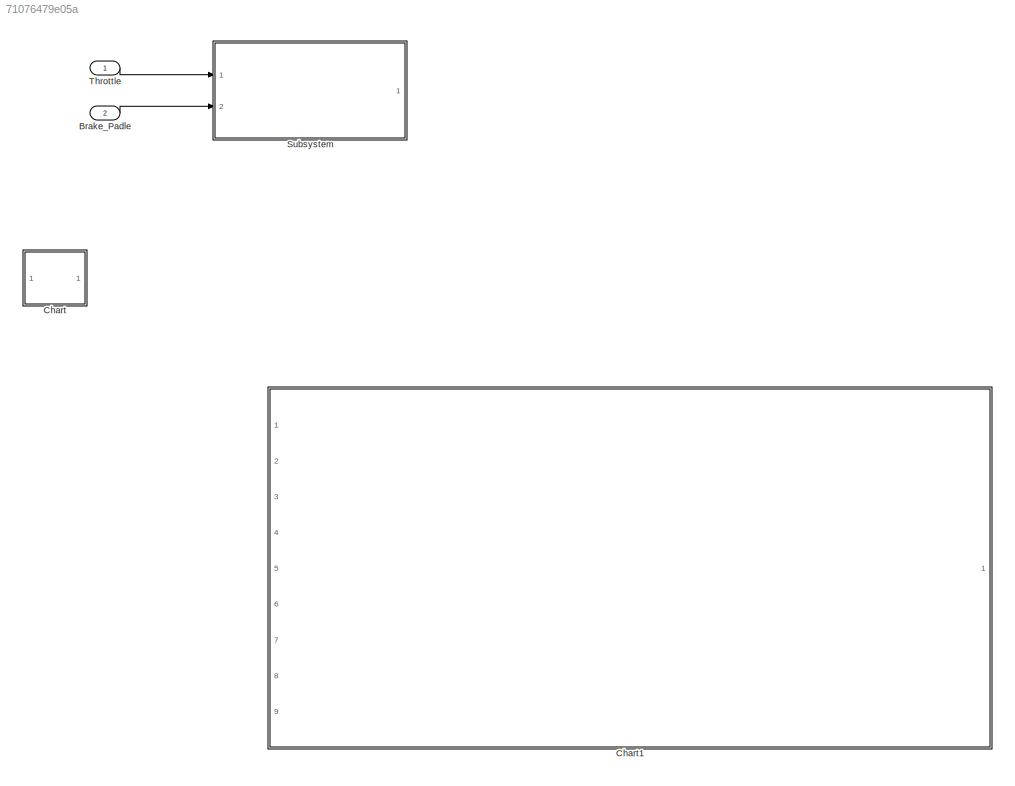
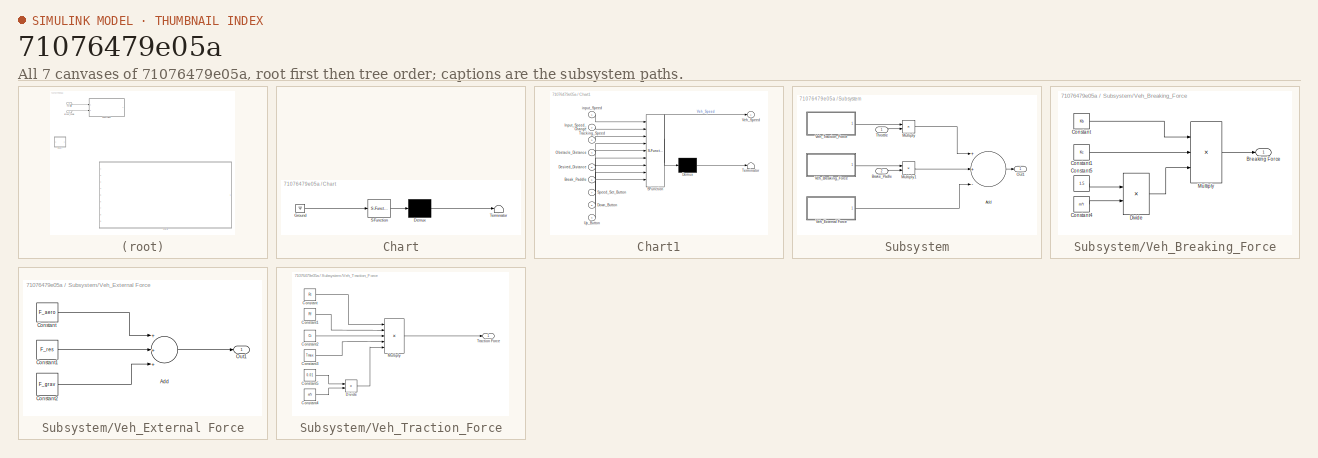
[diagram: thumbnail index - all 7 canvases of the model, root first then tree order]
MODEL slx_71076479e05a
KIND model
CONFIG AbsTol = auto
CONFIG EnableMultiTasking = off
CONFIG FixedStep = auto
CONFIG MaxStep = auto
CONFIG MinStep = auto
CONFIG RelTol = 1e-3
CONFIG SampleTimeConstraint = Unconstrained
CONFIG Solver = VariableStepAuto
CONFIG SolverName = VariableStepAuto
CONFIG StartTime = 0.0
CONFIG StopTime = 10.0
BLOCK [Inport] Brake_Padle
  IconDisplay = Port number
  Port = 2
BLOCK [SubSystem] Chart
  ErrorFcn = Stateflow.Translate.translate
  PermitHierarchicalResolution = ExplicitOnly
  Ports = []
  RequestExecContextInheritance = off
  SFBlockType = Chart
  TreatAsAtomicUnit = on
BLOCK [Demux] Chart/ Demux 
  Outputs = 1
  Ports = [1, 1]
BLOCK [Ground] Chart/ Ground 
BLOCK [S-Function] Chart/ SFunction 
  EnableBusSupport = on
  FunctionName = sf_sfun
  PortCounts = [1 1]
  Ports = [1, 1]
  SFcnIsStateOwnerBlock = off
  SFunctionDeploymentMode = off
  Tag = Stateflow S-Function Adaptive_Cruise_Control 3
BLOCK [Terminator] Chart/ Terminator 
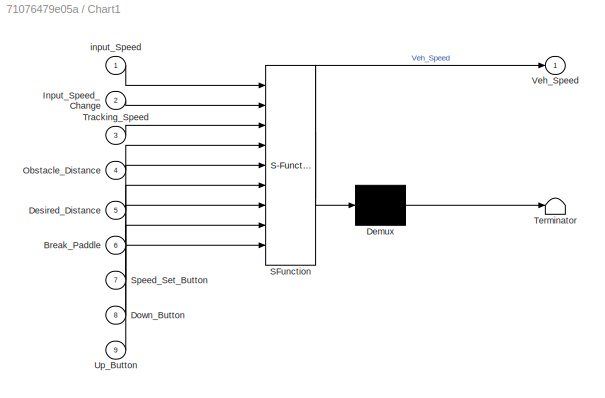
BLOCK [SubSystem] Chart1
  ErrorFcn = Stateflow.Translate.translate
  PermitHierarchicalResolution = ExplicitOnly
  Ports = [9, 1]
  RequestExecContextInheritance = off
  SFBlockType = Chart
  TreatAsAtomicUnit = on
BLOCK [Demux] Chart1/ Demux 
  Outputs = 1
  Ports = [1, 1]
BLOCK [S-Function] Chart1/ SFunction 
  EnableBusSupport = on
  FunctionName = sf_sfun
  PortCounts = [9 2]
  Ports = [9, 2]
  SFcnIsStateOwnerBlock = off
  SFunctionDeploymentMode = off
  Tag = Stateflow S-Function Adaptive_Cruise_Control 1
BLOCK [Terminator] Chart1/ Terminator 
BLOCK [Inport] Chart1/Break_Paddle
  IconDisplay = Port number
  Port = 6
BLOCK [Inport] Chart1/Desired_Distance
  IconDisplay = Port number
  Port = 5
BLOCK [Inport] Chart1/Down_Button
  IconDisplay = Port number
  Port = 8
BLOCK [Inport] Chart1/Input_Speed_Change
  IconDisplay = Port number
  Port = 2
BLOCK [Inport] Chart1/Obstacle_Distance
  IconDisplay = Port number
  Port = 4
BLOCK [Inport] Chart1/Speed_Set_Button
  IconDisplay = Port number
  Port = 7
BLOCK [Inport] Chart1/Tracking_Speed
  IconDisplay = Port number
  Port = 3
BLOCK [Inport] Chart1/Up_Button
  IconDisplay = Port number
  Port = 9
BLOCK [Outport] Chart1/Veh_Speed
  IconDisplay = Port number
BLOCK [Inport] Chart1/input_Speed
  IconDisplay = Port number
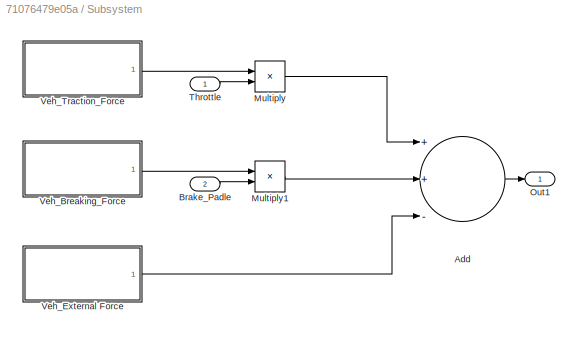
BLOCK [SubSystem] Subsystem
  Ports = [2, 1]
  RequestExecContextInheritance = off
BLOCK [Sum] Subsystem/Add
  InputSameDT = off
  Inputs = ++-
  OutDataTypeStr = Inherit: Inherit via internal rule
  Ports = [3, 1]
  SaturateOnIntegerOverflow = off
BLOCK [Inport] Subsystem/Brake_Padle
  IconDisplay = Port number
  Port = 2
BLOCK [Product] Subsystem/Multiply
  InputSameDT = off
  OutDataTypeStr = Inherit: Inherit via internal rule
  Ports = [2, 1]
  RndMeth = Floor
  SaturateOnIntegerOverflow = off
BLOCK [Product] Subsystem/Multiply1
  InputSameDT = off
  OutDataTypeStr = Inherit: Inherit via internal rule
  Ports = [2, 1]
  RndMeth = Floor
  SaturateOnIntegerOverflow = off
BLOCK [Outport] Subsystem/Out1
  IconDisplay = Port number
BLOCK [Inport] Subsystem/Throttle
  IconDisplay = Port number
BLOCK [SubSystem] Subsystem/Veh_Breaking_Force
  Ports = [0, 1]
  RequestExecContextInheritance = off
BLOCK [Outport] Subsystem/Veh_Breaking_Force/Breaking Force 
  IconDisplay = Port number
BLOCK [Constant] Subsystem/Veh_Breaking_Force/Constant
  Value = Kb
BLOCK [Constant] Subsystem/Veh_Breaking_Force/Constant1
  Value = Kc
BLOCK [Constant] Subsystem/Veh_Breaking_Force/Constant4
  Value = m*r
BLOCK [Constant] Subsystem/Veh_Breaking_Force/Constant5
  Value = 1.5
BLOCK [Product] Subsystem/Veh_Breaking_Force/Divide
  InputSameDT = off
  Inputs = */
  OutDataTypeStr = Inherit: Inherit via internal rule
  Ports = [2, 1]
  RndMeth = Floor
  SaturateOnIntegerOverflow = off
BLOCK [Product] Subsystem/Veh_Breaking_Force/Multiply
  InputSameDT = off
  Inputs = 3
  OutDataTypeStr = Inherit: Inherit via internal rule
  Ports = [3, 1]
  RndMeth = Floor
  SaturateOnIntegerOverflow = off
BLOCK [SubSystem] Subsystem/Veh_External Force
  Ports = [0, 1]
  RequestExecContextInheritance = off
BLOCK [Sum] Subsystem/Veh_External Force/Add
  InputSameDT = off
  Inputs = +++
  OutDataTypeStr = Inherit: Inherit via internal rule
  Ports = [3, 1]
  SaturateOnIntegerOverflow = off
BLOCK [Constant] Subsystem/Veh_External Force/Constant
  Value = F_aero
BLOCK [Constant] Subsystem/Veh_External Force/Constant1
  Value = F_res
BLOCK [Constant] Subsystem/Veh_External Force/Constant2
  Value = F_grav
BLOCK [Outport] Subsystem/Veh_External Force/Out1
  IconDisplay = Port number
BLOCK [SubSystem] Subsystem/Veh_Traction_Force
  Ports = [0, 1]
  RequestExecContextInheritance = off
BLOCK [Constant] Subsystem/Veh_Traction_Force/Constant
  Value = Rt
BLOCK [Constant] Subsystem/Veh_Traction_Force/Constant1
  Value = Rf
BLOCK [Constant] Subsystem/Veh_Traction_Force/Constant2
  Value = Ct
BLOCK [Constant] Subsystem/Veh_Traction_Force/Constant3
  Value = Tmax
BLOCK [Constant] Subsystem/Veh_Traction_Force/Constant4
  Value = m*r
BLOCK [Constant] Subsystem/Veh_Traction_Force/Constant5
  Value = 0.01
BLOCK [Product] Subsystem/Veh_Traction_Force/Divide
  InputSameDT = off
  Inputs = */
  OutDataTypeStr = Inherit: Inherit via internal rule
  Ports = [2, 1]
  RndMeth = Floor
  SaturateOnIntegerOverflow = off
BLOCK [Product] Subsystem/Veh_Traction_Force/Multiply
  InputSameDT = off
  Inputs = 5
  OutDataTypeStr = Inherit: Inherit via internal rule
  Ports = [5, 1]
  RndMeth = Floor
  SaturateOnIntegerOverflow = off
BLOCK [Outport] Subsystem/Veh_Traction_Force/Traction Force
  IconDisplay = Port number
BLOCK [Inport] Throttle
  IconDisplay = Port number
LINE Brake_Padle:1 -> Subsystem:2
LINE Subsystem/Add:1 -> Subsystem/Out1:1
LINE Subsystem/Brake_Padle:1 -> Subsystem/Multiply1:2
LINE Subsystem/Multiply1:1 -> Subsystem/Add:2
LINE Subsystem/Multiply:1 -> Subsystem/Add:1
LINE Subsystem/Throttle:1 -> Subsystem/Multiply:2
LINE Subsystem/Veh_Breaking_Force/Constant1:1 -> Subsystem/Veh_Breaking_Force/Multiply:2
LINE Subsystem/Veh_Breaking_Force/Constant4:1 -> Subsystem/Veh_Breaking_Force/Divide:2
LINE Subsystem/Veh_Breaking_Force/Constant5:1 -> Subsystem/Veh_Breaking_Force/Divide:1
LINE Subsystem/Veh_Breaking_Force/Constant:1 -> Subsystem/Veh_Breaking_Force/Multiply:1
LINE Subsystem/Veh_Breaking_Force/Divide:1 -> Subsystem/Veh_Breaking_Force/Multiply:3
LINE Subsystem/Veh_Breaking_Force/Multiply:1 -> Subsystem/Veh_Breaking_Force/Breaking Force :1
LINE Subsystem/Veh_Breaking_Force:1 -> Subsystem/Multiply1:1
LINE Subsystem/Veh_External Force/Add:1 -> Subsystem/Veh_External Force/Out1:1
LINE Subsystem/Veh_External Force/Constant1:1 -> Subsystem/Veh_External Force/Add:2
LINE Subsystem/Veh_External Force/Constant2:1 -> Subsystem/Veh_External Force/Add:3
LINE Subsystem/Veh_External Force/Constant:1 -> Subsystem/Veh_External Force/Add:1
LINE Subsystem/Veh_External Force:1 -> Subsystem/Add:3
LINE Subsystem/Veh_Traction_Force/Constant1:1 -> Subsystem/Veh_Traction_Force/Multiply:2
LINE Subsystem/Veh_Traction_Force/Constant2:1 -> Subsystem/Veh_Traction_Force/Multiply:3
LINE Subsystem/Veh_Traction_Force/Constant3:1 -> Subsystem/Veh_Traction_Force/Multiply:4
LINE Subsystem/Veh_Traction_Force/Constant4:1 -> Subsystem/Veh_Traction_Force/Divide:2
LINE Subsystem/Veh_Traction_Force/Constant5:1 -> Subsystem/Veh_Traction_Force/Divide:1
LINE Subsystem/Veh_Traction_Force/Constant:1 -> Subsystem/Veh_Traction_Force/Multiply:1
LINE Subsystem/Veh_Traction_Force/Divide:1 -> Subsystem/Veh_Traction_Force/Multiply:5
LINE Subsystem/Veh_Traction_Force/Multiply:1 -> Subsystem/Veh_Traction_Force/Traction Force:1
LINE Subsystem/Veh_Traction_Force:1 -> Subsystem/Multiply:1
LINE Throttle:1 -> Subsystem:1
CHART Chart1 states=8 transitions=13
  STATE_LABEL 'CRUISE_CONTROL_OFF\nVeh_Speed = input_Speed;'
  STATE_LABEL 'NORMAL_CRUISE_CONTROL_ON'
  STATE_LABEL 'UP_BUTTON_PRESSED\nVeh_Speed = Veh_Speed + 5;'
  STATE_LABEL 'DOWN_BUTTON_PRESSED\nVeh_Speed = Veh_Speed - 5;'
  STATE_LABEL 'Cruise_Control_ON\nVeh_Speed = Veh_Speed;'
  STATE_LABEL 'REFRESH_TO_REFRENCE\nVeh_Speed = input_Speed;'
  STATE_LABEL '{Veh_Speed = input_Speed}'
  STATE_LABEL '[Down_Button>0]'
  STATE_LABEL '[Up_Button > 0]'
  STATE_LABEL '[Input_Speed_Change > 0]'
  STATE_LABEL 'UP_BUTTON_PRESSED\nVeh_Speed = Veh_Speed + 5;'
  STATE_LABEL 'DOWN_BUTTON_PRESSED\nVeh_Speed = Veh_Speed - 5;'
  STATE_LABEL 'Cruise_Control_ON\nVeh_Speed = Veh_Speed;'
  STATE_LABEL 'REFRESH_TO_REFRENCE\nVeh_Speed = input_Speed;'
  STATE_LABEL 'ACTUATOR_LOGIC'
  STATE_LABEL 'CRUISE_CONTROL_TRACKING_MODE_ON\nVeh_Speed = Tracking_Speed;'
CHART Chart states=3 transitions=5
  STATE_LABEL 'UP_BUTTON_PRESSED\nVeh_Speed = Veh_Speed + 5;'
  STATE_LABEL 'DOWN_BUTTON_PRESSED\nVeh_Speed = Veh_Speed - 5;'
  STATE_LABEL 'Cruise_Control_ON\nVeh_Speed = Veh_speed;'
